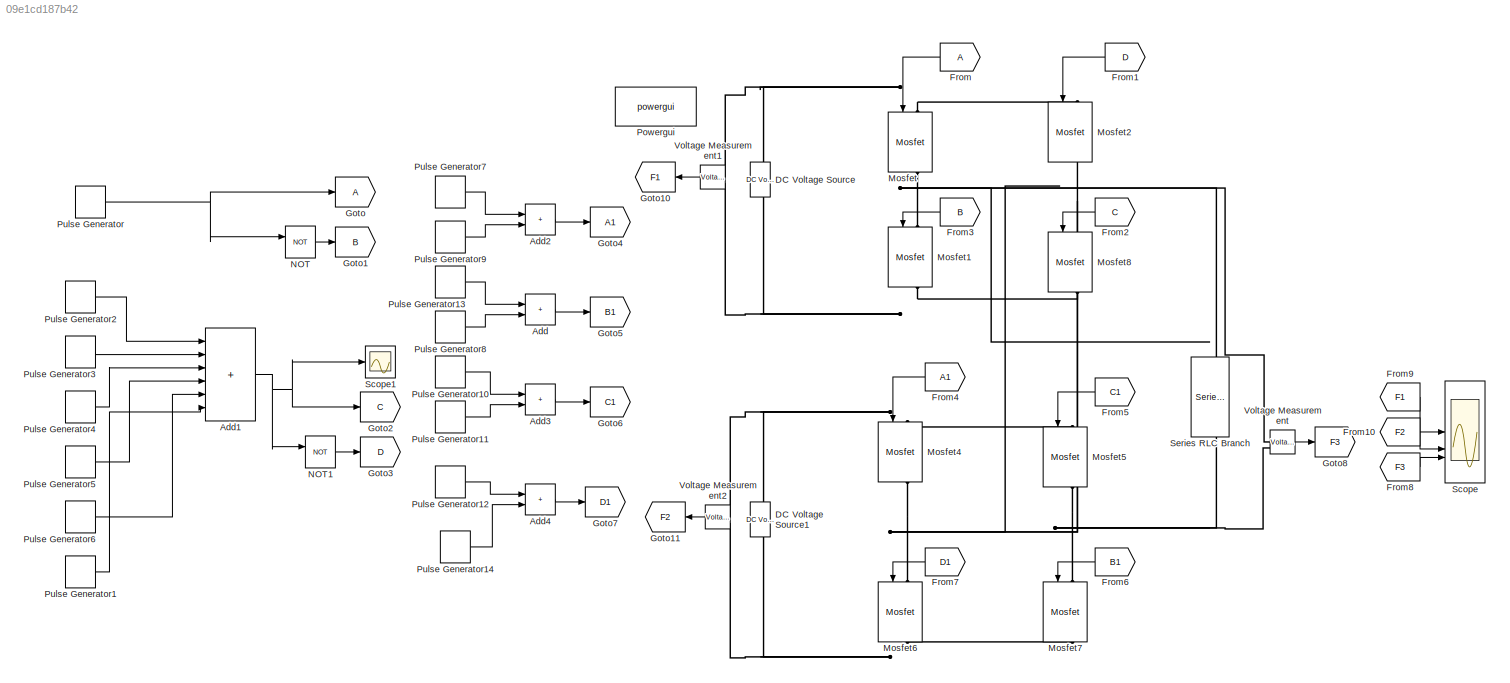
MODEL slx_09e1cd187b42
KIND model
CONFIG AbsTol = auto
CONFIG EnableMultiTasking = off
CONFIG FixedStep = auto
CONFIG MaxStep = auto
CONFIG MinStep = auto
CONFIG RelTol = 1e-3
CONFIG SampleTimeConstraint = Unconstrained
CONFIG SolverName = VariableStepAuto
CONFIG StartTime = 0.0
CONFIG StopTime = 1
BLOCK [Sum] Add
  IconShape = rectangular
BLOCK [Sum] Add1
  IconShape = rectangular
  Inputs = ++++++
BLOCK [Sum] Add2
  IconShape = rectangular
BLOCK [Sum] Add3
  IconShape = rectangular
BLOCK [Sum] Add4
  IconShape = rectangular
BLOCK [Reference] DC Voltage Source  REF=spsDCVoltageSourceLib/DC Voltage Source
  LibrarySourceBlock = sps_lib/Sources/DC Voltage Source
  NameLocation = left
  SourceBlock = spsDCVoltageSourceLib/DC Voltage Source
  SourceType = DC Voltage Source
BLOCK [Reference] DC Voltage Source1  REF=spsDCVoltageSourceLib/DC Voltage Source
  LibrarySourceBlock = sps_lib/Sources/DC Voltage Source
  NameLocation = left
  SourceBlock = spsDCVoltageSourceLib/DC Voltage Source
  SourceType = DC Voltage Source
BLOCK [From] From
  NameLocation = top
BLOCK [From] From1
  GotoTag = D
  NameLocation = top
BLOCK [From] From10
  GotoTag = F2
BLOCK [From] From2
  GotoTag = C
  NameLocation = top
BLOCK [From] From3
  GotoTag = B
  NameLocation = top
BLOCK [From] From4
  GotoTag = A1
  NameLocation = top
BLOCK [From] From5
  GotoTag = C1
  NameLocation = top
BLOCK [From] From6
  GotoTag = B1
  NameLocation = top
BLOCK [From] From7
  GotoTag = D1
  NameLocation = top
BLOCK [From] From8
  GotoTag = F3
BLOCK [From] From9
  GotoTag = F1
BLOCK [Goto] Goto
BLOCK [Goto] Goto1
  GotoTag = B
BLOCK [Goto] Goto10
  GotoTag = F1
  NameLocation = top
BLOCK [Goto] Goto11
  GotoTag = F2
  NameLocation = top
BLOCK [Goto] Goto2
  GotoTag = C
BLOCK [Goto] Goto3
  GotoTag = D
BLOCK [Goto] Goto4
  GotoTag = A1
BLOCK [Goto] Goto5
  GotoTag = B1
BLOCK [Goto] Goto6
  GotoTag = C1
BLOCK [Goto] Goto7
  GotoTag = D1
BLOCK [Goto] Goto8
  GotoTag = F3
BLOCK [Reference] Mosfet  REF=spsMosfetLib/Mosfet
  LibrarySourceBlock = sps_lib/Power Electronics/Mosfet
  NameLocation = left
  SourceBlock = spsMosfetLib/Mosfet
  SourceType = Mosfet
BLOCK [Reference] Mosfet1  REF=spsMosfetLib/Mosfet
  LibrarySourceBlock = sps_lib/Power Electronics/Mosfet
  NameLocation = left
  SourceBlock = spsMosfetLib/Mosfet
  SourceType = Mosfet
BLOCK [Reference] Mosfet2  REF=spsMosfetLib/Mosfet
  LibrarySourceBlock = sps_lib/Power Electronics/Mosfet
  NameLocation = left
  SourceBlock = spsMosfetLib/Mosfet
  SourceType = Mosfet
BLOCK [Reference] Mosfet4  REF=spsMosfetLib/Mosfet
  LibrarySourceBlock = sps_lib/Power Electronics/Mosfet
  NameLocation = left
  SourceBlock = spsMosfetLib/Mosfet
  SourceType = Mosfet
BLOCK [Reference] Mosfet5  REF=spsMosfetLib/Mosfet
  LibrarySourceBlock = sps_lib/Power Electronics/Mosfet
  NameLocation = left
  SourceBlock = spsMosfetLib/Mosfet
  SourceType = Mosfet
BLOCK [Reference] Mosfet6  REF=spsMosfetLib/Mosfet
  LibrarySourceBlock = sps_lib/Power Electronics/Mosfet
  NameLocation = left
  SourceBlock = spsMosfetLib/Mosfet
  SourceType = Mosfet
BLOCK [Reference] Mosfet7  REF=spsMosfetLib/Mosfet
  LibrarySourceBlock = sps_lib/Power Electronics/Mosfet
  NameLocation = left
  SourceBlock = spsMosfetLib/Mosfet
  SourceType = Mosfet
BLOCK [Reference] Mosfet8  REF=spsMosfetLib/Mosfet
  LibrarySourceBlock = sps_lib/Power Electronics/Mosfet
  NameLocation = left
  SourceBlock = spsMosfetLib/Mosfet
  SourceType = Mosfet
BLOCK [Logic] NOT
  AllPortsSameDT = off
  IconShape = distinctive
  Operator = NOT
  OutDataTypeStr = boolean
BLOCK [Logic] NOT1
  AllPortsSameDT = off
  IconShape = distinctive
  Operator = NOT
  OutDataTypeStr = boolean
BLOCK [Reference] Powergui  REF=spspowerguiLib/powergui
  Priority = 1
  SourceBlock = spspowerguiLib/powergui
  SourceType = PSB option menu block
BLOCK [DiscretePulseGenerator] Pulse Generator
  Period = 0.02
  PulseType = Time based
  PulseWidth = (8/14)*100
BLOCK [DiscretePulseGenerator] Pulse Generator1
  Period = 0.02
  PhaseDelay = (13/14)*0.02
  PulseType = Time based
  PulseWidth = (1/14)*100
BLOCK [DiscretePulseGenerator] Pulse Generator10
  Period = 0.02
  PulseType = Time based
  PulseWidth = (2/14)*100
BLOCK [DiscretePulseGenerator] Pulse Generator11
  Period = 0.02
  PhaseDelay = (5/14)*0.02
  PulseType = Time based
  PulseWidth = (8/14)*100
BLOCK [DiscretePulseGenerator] Pulse Generator12
  Period = 0.02
  PhaseDelay = (9/14)*0.02
  PulseType = Time based
  PulseWidth = (3/14)*100
BLOCK [DiscretePulseGenerator] Pulse Generator13
  Period = 0.02
  PhaseDelay = (13/14)*0.02
  PulseType = Time based
  PulseWidth = (1/14)*100
BLOCK [DiscretePulseGenerator] Pulse Generator14
  Period = 0.02
  PhaseDelay = (13/14)*0.02
  PulseType = Time based
  PulseWidth = (1/14)*100
BLOCK [DiscretePulseGenerator] Pulse Generator2
  Period = 0.02
  PhaseDelay = (1/14)*0.02
  PulseType = Time based
  PulseWidth = (1/14)*100
BLOCK [DiscretePulseGenerator] Pulse Generator3
  Period = 0.02
  PhaseDelay = (3/14)*0.02
  PulseType = Time based
  PulseWidth = (1/14)*100
BLOCK [DiscretePulseGenerator] Pulse Generator4
  Period = 0.02
  PhaseDelay = (5/14)*0.02
  PulseType = Time based
  PulseWidth = (1/14)*100
BLOCK [DiscretePulseGenerator] Pulse Generator5
  Period = 0.02
  PhaseDelay = (9/14)*0.02
  PulseType = Time based
  PulseWidth = (1/14)*100
BLOCK [DiscretePulseGenerator] Pulse Generator6
  Period = 0.02
  PhaseDelay = (11/14)*0.02
  PulseType = Time based
  PulseWidth = (1/14)*100
BLOCK [DiscretePulseGenerator] Pulse Generator7
  Period = 0.02
  PulseType = Time based
  PulseWidth = (9/14)*100
BLOCK [DiscretePulseGenerator] Pulse Generator8
  Period = 0.02
  PhaseDelay = (2/14)*0.02
  PulseType = Time based
  PulseWidth = (3/14)*100
BLOCK [DiscretePulseGenerator] Pulse Generator9
  Period = 0.02
  PhaseDelay = (12/14)*0.02
  PulseType = Time based
  PulseWidth = (1/14)*100
BLOCK [Scope] Scope
  Floating = off
  NumInputPorts = 3
  ScopeSpecificationString = Simulink.scopes.TimeScopeBlockCfg('CurrentConfiguration', extmgr.ConfigurationSet(extmgr.Configuration('Core','General UI',true,'FigureColor',[1 1 1]),extmgr.Configuration('Core','Source UI',true),extmgr.Configuration('Sources','WiredSimulink',true),extmgr.Configuration('Visuals','Time Domain',true,'SerializedDisplays',{struct('MinYLimReal','-370.06506','MaxYLimReal','370.06506','YLabelReal','','M...<+3263ch>
BLOCK [Scope] Scope1
  Floating = off
  NumInputPorts = 1
  ScopeSpecificationString = Simulink.scopes.TimeScopeBlockCfg('CurrentConfiguration', extmgr.ConfigurationSet(extmgr.Configuration('Core','General UI',true),extmgr.Configuration('Core','Source UI',true),extmgr.Configuration('Sources','WiredSimulink',true,'DataLoggingVariableName','ScopeData1'),extmgr.Configuration('Visuals','Time Domain',true,'SerializedDisplays',{struct('MinYLimReal','-0.125','MaxYLimReal','1.125','YLabelRe...<+1437ch>
BLOCK [Reference] Series RLC Branch  REF=spsSeriesRLCBranchLib/Series RLC Branch
  LibrarySourceBlock = sps_lib/Passives/Series RLC Branch
  NameLocation = left
  SourceBlock = spsSeriesRLCBranchLib/Series RLC Branch
  SourceType = Series RLC Branch
BLOCK [Reference] Voltage Measurement  REF=spsVoltageMeasurementLib/Voltage Measurement
  LibrarySourceBlock = sps_lib/Sensors and Measurements/Voltage Measurement
  SourceBlock = spsVoltageMeasurementLib/Voltage Measurement
  SourceType = Voltage Measurement
  UserDataPersistent = on
BLOCK [Reference] Voltage Measurement1  REF=spsVoltageMeasurementLib/Voltage Measurement
  LibrarySourceBlock = sps_lib/Sensors and Measurements/Voltage Measurement
  NameLocation = top
  SourceBlock = spsVoltageMeasurementLib/Voltage Measurement
  SourceType = Voltage Measurement
  UserDataPersistent = on
BLOCK [Reference] Voltage Measurement2  REF=spsVoltageMeasurementLib/Voltage Measurement
  LibrarySourceBlock = sps_lib/Sensors and Measurements/Voltage Measurement
  NameLocation = top
  SourceBlock = spsVoltageMeasurementLib/Voltage Measurement
  SourceType = Voltage Measurement
  UserDataPersistent = on
NET Add1:1 -> Goto2:1, NOT1:1, Scope1:1
LINE Add2:1 -> Goto4:1
LINE Add3:1 -> Goto6:1
LINE Add4:1 -> Goto7:1
LINE Add:1 -> Goto5:1
LINE From10:1 -> Scope:2
LINE From1:1 -> Mosfet2:1
LINE From2:1 -> Mosfet8:1
LINE From3:1 -> Mosfet1:1
LINE From4:1 -> Mosfet4:1
LINE From5:1 -> Mosfet5:1
LINE From6:1 -> Mosfet7:1
LINE From7:1 -> Mosfet6:1
LINE From8:1 -> Scope:3
LINE From9:1 -> Scope:1
LINE From:1 -> Mosfet:1
LINE NOT1:1 -> Goto3:1
LINE NOT:1 -> Goto1:1
LINE Pulse Generator10:1 -> Add3:1
LINE Pulse Generator11:1 -> Add3:2
LINE Pulse Generator12:1 -> Add4:1
LINE Pulse Generator13:1 -> Add:1
LINE Pulse Generator14:1 -> Add4:2
LINE Pulse Generator1:1 -> Add1:6
LINE Pulse Generator2:1 -> Add1:1
LINE Pulse Generator3:1 -> Add1:2
LINE Pulse Generator4:1 -> Add1:3
LINE Pulse Generator5:1 -> Add1:4
LINE Pulse Generator6:1 -> Add1:5
LINE Pulse Generator7:1 -> Add2:1
LINE Pulse Generator8:1 -> Add:2
LINE Pulse Generator9:1 -> Add2:2
NET Pulse Generator:1 -> Goto:1, NOT:1
LINE Voltage Measurement1:1 -> Goto10:1
LINE Voltage Measurement2:1 -> Goto11:1
LINE Voltage Measurement:1 -> Goto8:1
PNET net1: DC Voltage Source1:LConn1 -- Mosfet6:RConn1 -- Mosfet7:RConn1 -- Voltage Measurement2:LConn2
PNET net2: DC Voltage Source1:RConn1 -- Mosfet4:LConn1 -- Mosfet5:LConn1 -- Voltage Measurement2:LConn1
PNET net3: DC Voltage Source:LConn1 -- Mosfet1:RConn1 -- Mosfet8:RConn1 -- Voltage Measurement1:LConn2
PNET net4: DC Voltage Source:RConn1 -- Mosfet2:LConn1 -- Mosfet:LConn1 -- Voltage Measurement1:LConn1
PNET net5: Mosfet1:LConn1 -- Mosfet:RConn1 -- Series RLC Branch:LConn1 -- Voltage Measurement:LConn1
PNET net6: Mosfet2:RConn1 -- Mosfet4:RConn1 -- Mosfet6:LConn1 -- Mosfet8:LConn1
PNET net7: Mosfet5:RConn1 -- Mosfet7:LConn1 -- Series RLC Branch:RConn1 -- Voltage Measurement:LConn2
note: NET lines group one-source signal fan-out (src -> all destinations, sorted); 1:1 wires keep LINE; PNET lines group multi-terminal physical nets as a canonical sorted terminal list (undirected conserving connections); 2-terminal nets keep the pairwise PLINE form
